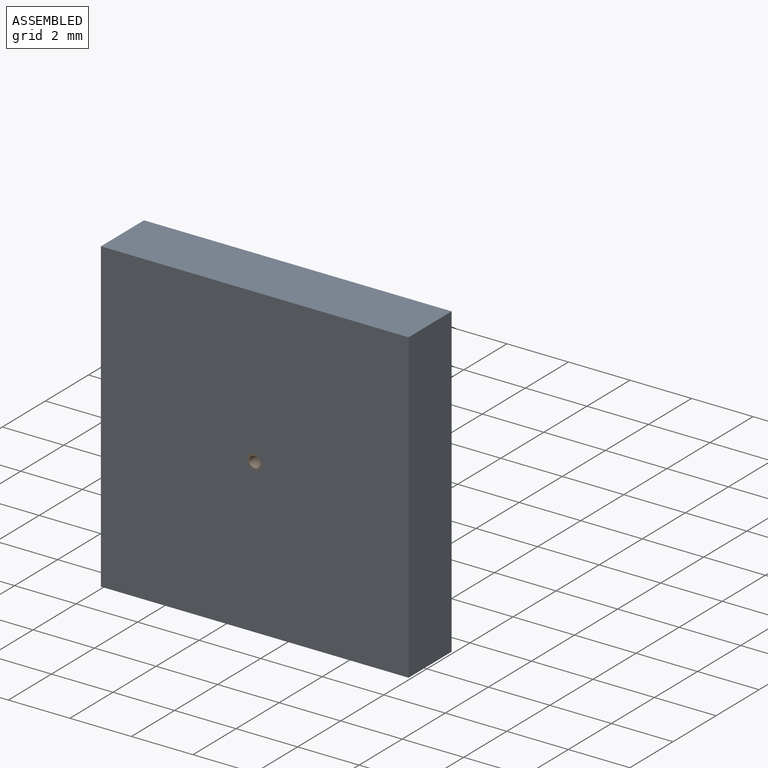
[diagram: assembled view]
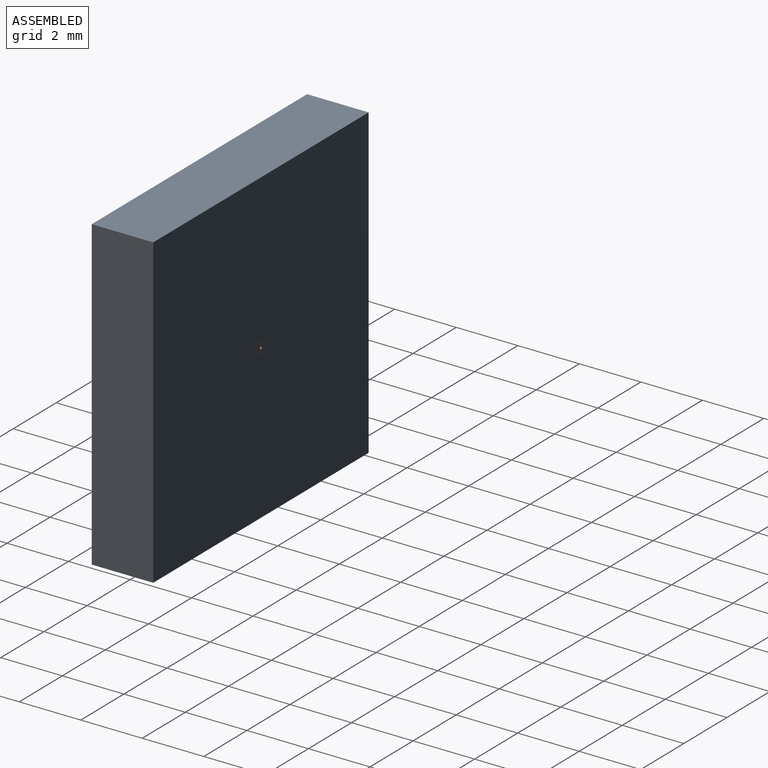
[diagram: assembled view, second angle]
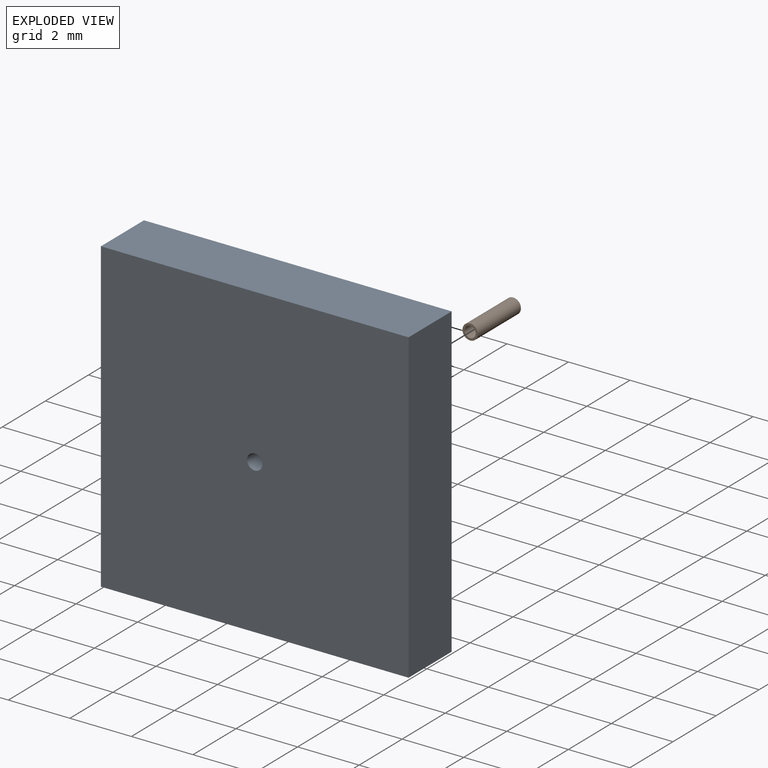
[diagram: exploded view]
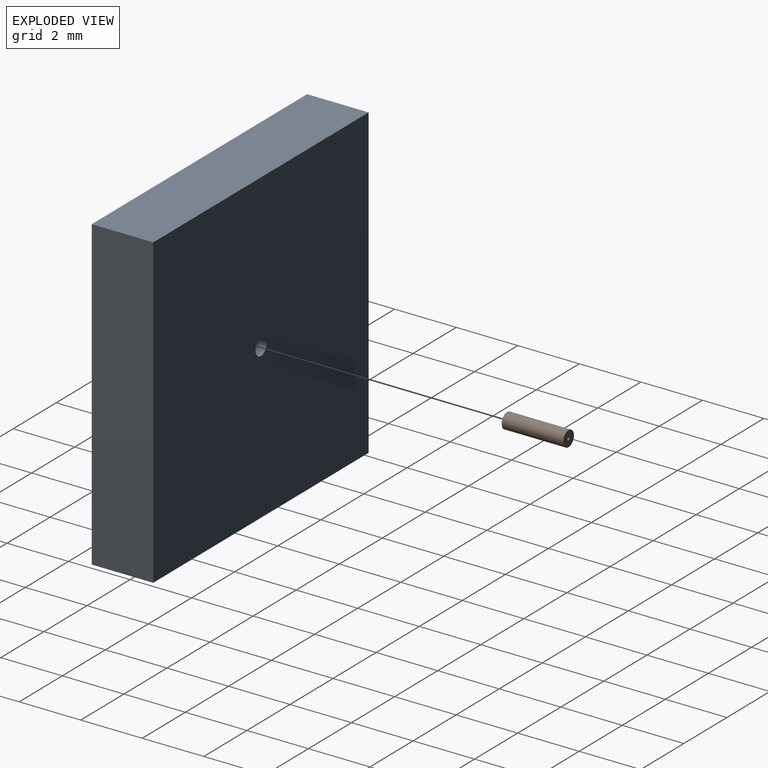
[diagram: exploded view, second angle]
ASSEMBLY  parts=2 mates=2
PART A: 7 faces, bbox 10x10x2 mm
  f0: plane 10x2mm, normal (-1,0,0), area 20mm2, adj f1,f4,f5,f6
  f1: plane 10x2mm, normal (0,-1,0), area 20mm2, adj f0,f2,f5,f6
  f2: plane 10x2mm, normal (1,0,0), area 20mm2, adj f1,f4,f5,f6
  f3: cylinder r=0.25mm len=2mm, axis (0,0,-1), area 3.1mm2, adj f5,f6
  f4: plane 10x2mm, normal (0,1,0), area 20mm2, adj f0,f2,f5,f6
  f5: plane 10x10mm, normal (0,0,1), area 99.8mm2, adj f0,f1,f2,f3,f4
  f6: plane 10x10mm, normal (0,0,-1), area 99.8mm2, adj f0,f1,f2,f3,f4
PART B: 6 faces, bbox 0.5x2x0.5 mm
  f0: cylinder r=0.25mm len=2mm, axis (0,1,0), area 3.1mm2, adj f1,f5
  f1: plane 0.5x0.5mm, normal (0,1,0), area 0.2mm2, adj f0,f2
  f2: cylinder r=0.05mm len=0.5mm, axis (0,1,0), area 0.2mm2, adj f1,f3
  f3: plane 0.36x0.36mm, normal (0,-1,0), area 0.1mm2, adj f2,f4
  f4: cylinder r=0.18mm len=1.5mm, axis (0,1,0), area 1.7mm2, adj f3,f5
  f5: plane 0.5x0.5mm, normal (0,-1,0), area 0.1mm2, adj f0,f4
PLACE A rot(axis=(-1,0,0),90deg) t=(1.19,-3.11,6.62)mm
PLACE B t=(1.19,-1.11,6.62)mm
MATE cylindrical B.f0 <-> A.f3  axis (0,1,0) through (1.19,-2.11,6.62)mm
MATE planar A.f3 <-> B.f0  axis (0,1,0) through (1.19,-1.11,6.62)mm
